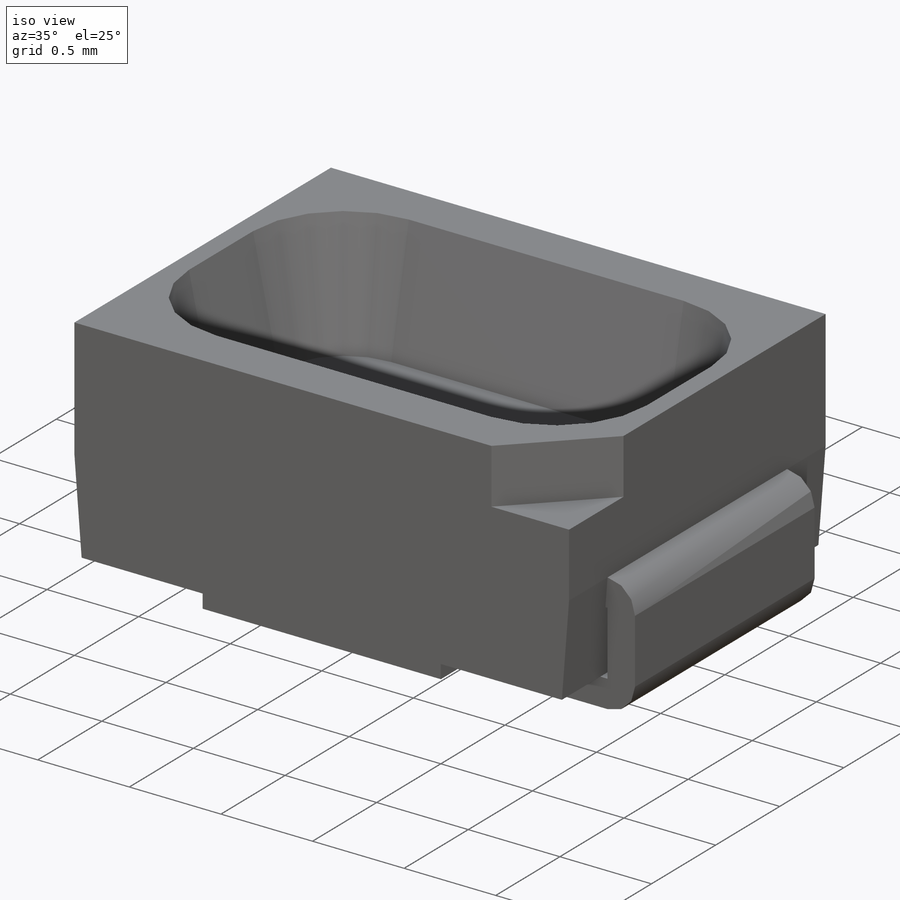
[diagram: iso view]
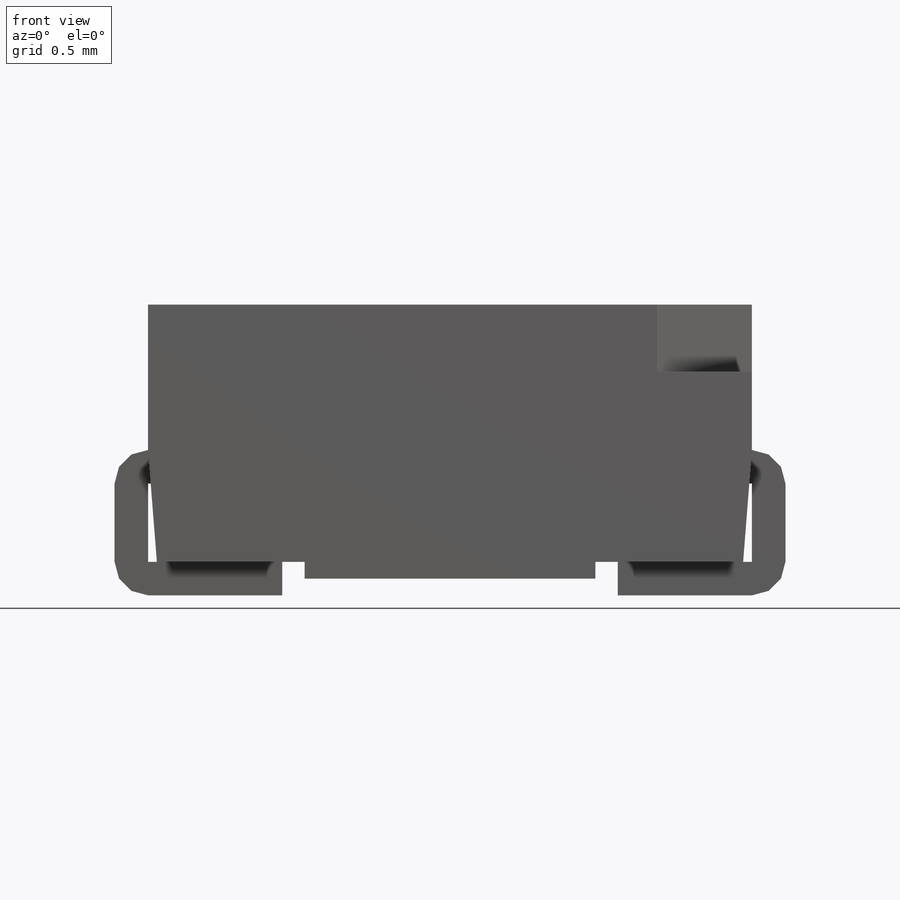
[diagram: front view]
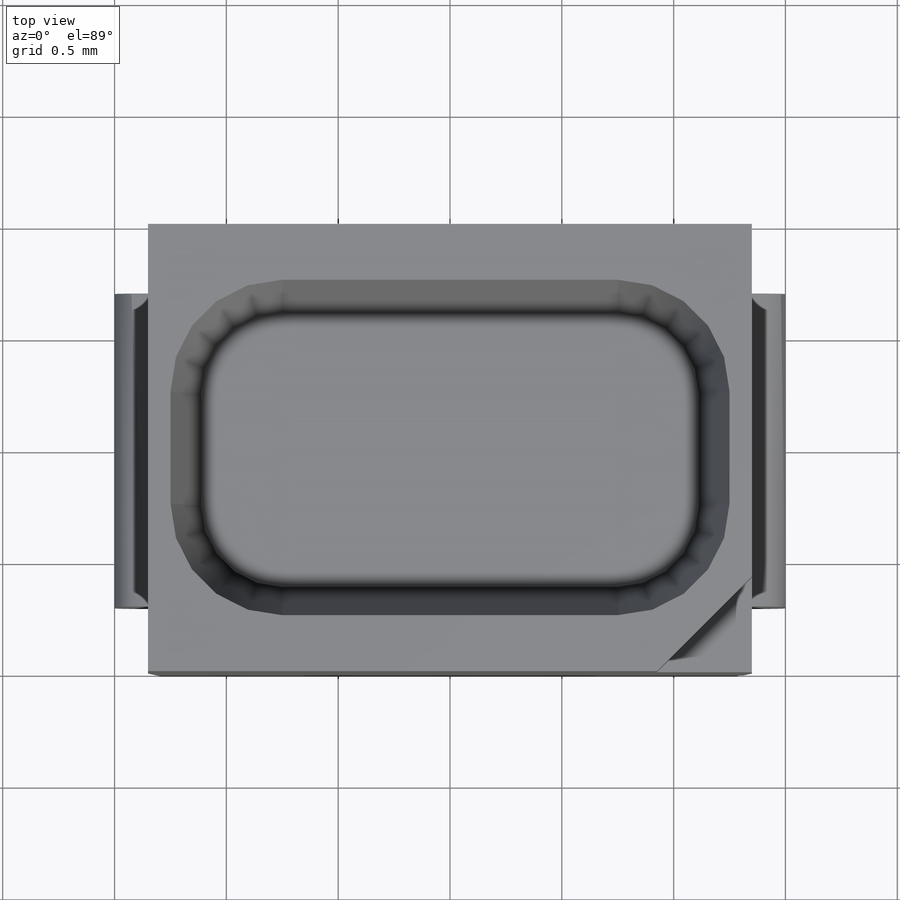
[diagram: top view]
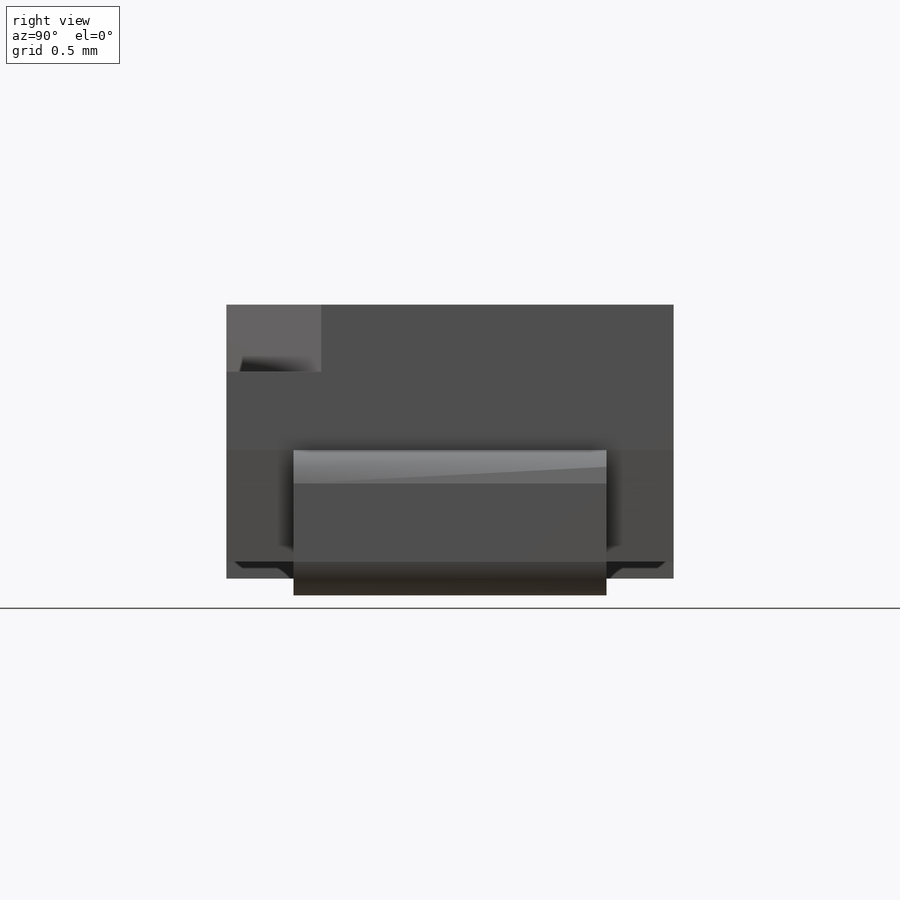
[diagram: right view]
SOLIDWORKS PART (.sldprt)
format: sldprt  version: not decoded by parser v0  size: 323,072 bytes
history: native  units: mm
features: sketch x5, extrude x2, cut_extrude x2, material x1 (+11 scaffold rows collapsed)
feature tree (21):
  scaffold x11  (default folders/planes/origin — collapsed)
  material  "Material <not specified>"
  sketch  "Sketch1"  dims[c1.D9=0.15mm c1.D1=3.2mm c1.D2=~4.291667mm c2.D2=4.5deg c2.D3=0.65mm c2.D4=1.3mm c2.D5=0.36mm c2.D6=2.4mm c3.D5=0.36mm c4.D5=95.0deg c4.D6=~0.361375mm c5.D6=89.0deg c5.D7=1.3mm c5.D8=0.075mm c5.D5=1.1mm c6.D6=0.8mm c6.D5=1.1mm c7.D6=0.8mm c7.D10=0.1mm c7.D5=0.6mm c8.D6=0.75mm c8.D9=~2.700262mm c8.D11=3.0mm c8.D4=1.3mm c8.D5=0.075mm c8.D10=0.15mm]
  extrude  "Extrude1"  Depth=2mm
  sketch  "Sketch4"  dims[c1.D1=2.4mm c1.D2=1.4mm c1.D5=0.5mm c1.D3=~1.64441mm c2.D3=45.0deg c2.D4=0.75mm c2.D1=~0.518789mm c3.D1=45.0deg c3.D2=0.75mm c3.D3=1.5mm c3.D4=2.5mm c3.D6=0.6mm c3.D7=0.75mm c4.D7=45.0deg]
  cut_extrude  "Cut-Extrude1"  Depth=0.65mm
  extrude  "Extrude2"  [1 undecoded]
  sketch  "Sketch1<3>"  dims[D1=1.4mm]
  cut_extrude  "Cut-Extrude2"  [1 undecoded]
  sketch  "Sketch4<5>"  dims[D1=0.3mm]
  sketch  "Sketch5"  dims[D1=~1.707274mm]
decode coverage: 7 of 9 modeling features carry decoded parameters
note: ~ marks probable driven/reference dimensions
note: 2 parameter values undecoded
note: suppression state not decoded; provenance and decode notes live in map.json
